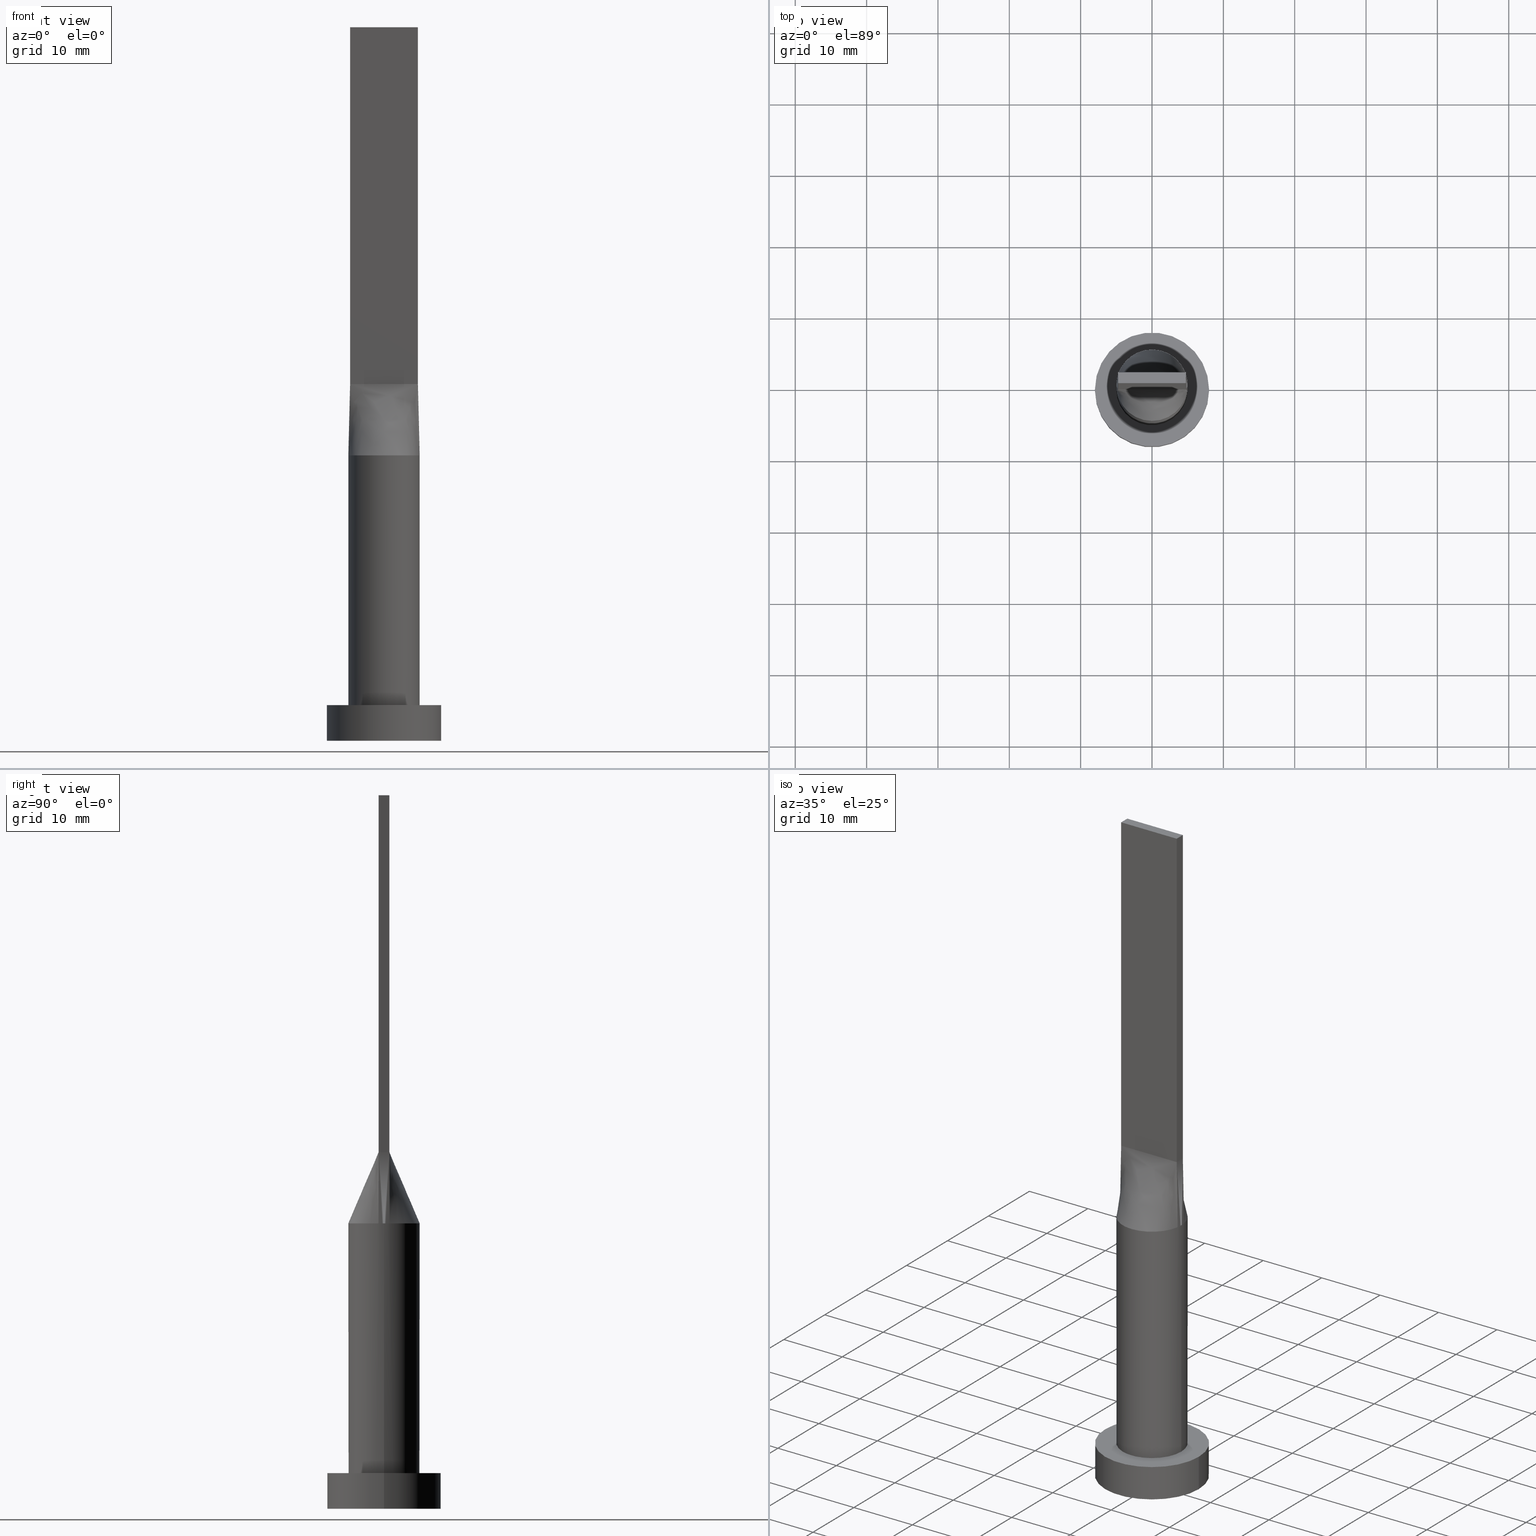
[diagram: canonical four-view strip — front | top / right | iso, engineering-drawing reading convention]
A machine part, canonical four-view strip (front | top / right | iso — engineering-drawing reading convention). The complete STEP part file that produces these views, byte-faithful:
ISO-10303-21;
HEADER;
FILE_DESCRIPTION (( 'STEP AP203' ),
    '1' );
FILE_NAME ('0598.STEP',
    '2023-02-13T09:35:36',
    ( '' ),
    ( '' ),
    'SwSTEP 2.0',
    'SolidWorks 2019',
    '' );
FILE_SCHEMA (( 'CONFIG_CONTROL_DESIGN' ));
ENDSEC;

DATA;
#1 = EDGE_CURVE ( 'NONE', #193, #394, #350, .T. ) ;
#2 = DIRECTION ( 'NONE',  ( 0.000000000000000000, -1.000000000000000000, 0.000000000000000000 ) ) ;
#3 = ORIENTED_EDGE ( 'NONE', *, *, #515, .F. ) ;
#4 = PLANE ( 'NONE',  #310 ) ;
#5 = DIRECTION ( 'NONE',  ( 1.000000000000000000, 0.000000000000000000, 0.000000000000000000 ) ) ;
#6 = CARTESIAN_POINT ( 'NONE',  ( 1.732223102076450250, 4.702695359254404295, 39.99999999999997868 ) ) ;
#7 = VECTOR ( 'NONE', #244, 1000.000000000000000 ) ;
#8 = EDGE_CURVE ( 'NONE', #159, #101, #402, .T. ) ;
#9 = LOCAL_TIME ( 10, 35, 36.00000000000000000, #344 ) ;
#10 = CARTESIAN_POINT ( 'NONE',  ( 4.938814826645345768, -0.7798128673650550624, 40.00000000000000000 ) ) ;
#11 = VECTOR ( 'NONE', #167, 1000.000000000000000 ) ;
#12 = PERSON ( 'NEUR�EN�', 'NEUR�EN�', 'NEUR�EN�', ('NEUR�EN�'), ('NEUR�EN�'), ('NEUR�EN�') ) ;
#13 = DIRECTION ( 'NONE',  ( 0.000000000000000000, 0.000000000000000000, 1.000000000000000000 ) ) ;
#14 = ORIENTED_EDGE ( 'NONE', *, *, #271, .T. ) ;
#15 = ORIENTED_EDGE ( 'NONE', *, *, #79, .T. ) ;
#16 = CARTESIAN_POINT ( 'NONE',  ( 2.353781608410062454, 4.424438117685770777, 40.00000000000000000 ) ) ;
#17 = EDGE_LOOP ( 'NONE', ( #121, #343, #56, #200 ) ) ;
#18 = EDGE_CURVE ( 'NONE', #597, #28, #220, .T. ) ;
#19 = PERSON_AND_ORGANIZATION_ROLE ( 'design_owner' ) ;
#20 = FACE_OUTER_BOUND ( 'NONE', #547, .T. ) ;
#21 = ORIENTED_EDGE ( 'NONE', *, *, #583, .T. ) ;
#22 = AXIS2_PLACEMENT_3D ( 'NONE', #239, #48, #523 ) ;
#23 = AXIS2_PLACEMENT_3D ( 'NONE', #505, #132, #100 ) ;
#24 = APPROVAL_STATUS ( 'not_yet_approved' ) ;
#25 = EDGE_LOOP ( 'NONE', ( #389, #3, #296, #266 ) ) ;
#26 = FACE_OUTER_BOUND ( 'NONE', #228, .T. ) ;
#27 = EDGE_LOOP ( 'NONE', ( #328, #237, #551, #561 ) ) ;
#28 = VERTEX_POINT ( 'NONE', #267 ) ;
#29 = DIRECTION ( 'NONE',  ( -0.000000000000000000, -0.000000000000000000, -1.000000000000000000 ) ) ;
#30 = DIRECTION ( 'NONE',  ( 1.000000000000000000, 0.000000000000000000, 0.000000000000000000 ) ) ;
#31 = CARTESIAN_POINT ( 'NONE',  ( 0.000000000000000000, 0.000000000000000000, 5.000000000000000000 ) ) ;
#32 = CC_DESIGN_PERSON_AND_ORGANIZATION_ASSIGNMENT ( #534, #19, ( #513 ) ) ;
#33 = CARTESIAN_POINT ( 'NONE',  ( -4.750000000000000000, 0.5000000000000000000, 50.00000000000000000 ) ) ;
#34 = AXIS2_PLACEMENT_3D ( 'NONE', #31, #608, #274 ) ;
#35 = CARTESIAN_POINT ( 'NONE',  ( -0.9895833333333416970, 0.7500000000000002220, 50.00000000000000000 ) ) ;
#36 = CARTESIAN_POINT ( 'NONE',  ( -0.3560391241594598188, -5.000000000000001776, 40.00000000000000000 ) ) ;
#37 = CARTESIAN_POINT ( 'NONE',  ( 4.844407413322673328, 0.7649064336825270871, 45.00000000000000000 ) ) ;
#38 = CARTESIAN_POINT ( 'NONE',  ( 4.354166666666667851, -0.7499999999999997780, 50.00000000000000000 ) ) ;
#39 = EDGE_CURVE ( 'NONE', #103, #183, #453, .T. ) ;
#40 = CARTESIAN_POINT ( 'NONE',  ( -4.750000000000000000, -0.7499999999999991118, 50.00000000000000000 ) ) ;
#41 = DIRECTION ( 'NONE',  ( 0.000000000000000000, 0.000000000000000000, 1.000000000000000000 ) ) ;
#42 = VECTOR ( 'NONE', #363, 1000.000000000000000 ) ;
#43 = LINE ( 'NONE', #431, #194 ) ;
#44 = CARTESIAN_POINT ( 'NONE',  ( 4.938833698301754893, -0.7798158709413661738, 40.00000000000000000 ) ) ;
#45 = AXIS2_PLACEMENT_3D ( 'NONE', #233, #326, #231 ) ;
#46 = CARTESIAN_POINT ( 'NONE',  ( -4.750000000000000000, 0.7500000000000002220, 50.00000000000000000 ) ) ;
#47 = CARTESIAN_POINT ( 'NONE',  ( -4.874625637456156291, 1.186344398896586716, 40.00000000000000000 ) ) ;
#48 = DIRECTION ( 'NONE',  ( 0.000000000000000000, 0.000000000000000000, 1.000000000000000000 ) ) ;
#49 = FACE_OUTER_BOUND ( 'NONE', #139, .T. ) ;
#50 = ADVANCED_FACE ( 'NONE', ( #306 ), #571, .T. ) ;
#51 = DIRECTION ( 'NONE',  ( -1.000000000000000000, 0.000000000000000000, 0.000000000000000000 ) ) ;
#52 = LINE ( 'NONE', #204, #7 ) ;
#53 = CLOSED_SHELL ( 'NONE', ( #250, #409, #508, #212, #154, #362, #50, #293, #88, #334, #305, #190, #127, #481, #553 ) ) ;
#54 = ORIENTED_EDGE ( 'NONE', *, *, #591, .F. ) ;
#55 =( NAMED_UNIT ( * ) SI_UNIT ( $, .STERADIAN. ) SOLID_ANGLE_UNIT ( ) );
#56 = ORIENTED_EDGE ( 'NONE', *, *, #163, .T. ) ;
#57 = CARTESIAN_POINT ( 'NONE',  ( 0.000000000000000000, 0.000000000000000000, 0.000000000000000000 ) ) ;
#58 = EDGE_CURVE ( 'NONE', #394, #151, #519, .T. ) ;
#59 = EDGE_LOOP ( 'NONE', ( #454, #78, #14, #264 ) ) ;
#60 = PLANE ( 'NONE',  #470 ) ;
#61 = DATE_AND_TIME ( #340, #545 ) ;
#62 = ORGANIZATION ( 'NEUR�EN�', 'NEUR�EN�', '' ) ;
#63 = CARTESIAN_POINT ( 'NONE',  ( -0.7119876437238006339, 4.961551549233178982, 40.00000000000000711 ) ) ;
#64 = CARTESIAN_POINT ( 'NONE',  ( -2.643217737595827010, -4.256483892511436551, 39.99999999999999289 ) ) ;
#65 = CARTESIAN_POINT ( 'NONE',  ( 3.168723755431093192, 3.881165404529570040, 39.99999999999999289 ) ) ;
#66 = EDGE_CURVE ( 'NONE', #107, #441, #601, .T. ) ;
#67 = ORIENTED_EDGE ( 'NONE', *, *, #564, .T. ) ;
#68 = CARTESIAN_POINT ( 'NONE',  ( -4.332026455536839293, -2.547220758687717801, 40.00000000000000711 ) ) ;
#69 = APPLICATION_CONTEXT ( 'configuration controlled 3d designs of mechanical parts and assemblies' ) ;
#70 = PERSON_AND_ORGANIZATION ( #12, #62 ) ;
#71 = CARTESIAN_POINT ( 'NONE',  ( 4.354166666666665186, 0.7500000000000002220, 50.00000000000000000 ) ) ;
#72 = ORIENTED_EDGE ( 'NONE', *, *, #455, .F. ) ;
#73 = PERSON_AND_ORGANIZATION_ROLE ( 'classification_officer' ) ;
#74 = CARTESIAN_POINT ( 'NONE',  ( 4.750000000000000000, 0.5000000000000006661, 50.00000000000000000 ) ) ;
#75 = ORIENTED_EDGE ( 'NONE', *, *, #591, .T. ) ;
#77 = CARTESIAN_POINT ( 'NONE',  ( -5.000000000000000000, 0.000000000000000000, 5.000000000000000000 ) ) ;
#76 = ADVANCED_BREP_SHAPE_REPRESENTATION ( '0598', ( #137, #430 ), #272 ) ;
#78 = ORIENTED_EDGE ( 'NONE', *, *, #342, .T. ) ;
#79 = EDGE_CURVE ( 'NONE', #213, #259, #142, .T. ) ;
#80 = FACE_OUTER_BOUND ( 'NONE', #128, .T. ) ;
#81 = CARTESIAN_POINT ( 'NONE',  ( 3.958333333333336146, -0.7499999999999997780, 50.00000000000000000 ) ) ;
#82 = CARTESIAN_POINT ( 'NONE',  ( 0.000000000000000000, 0.000000000000000000, 5.000000000000000000 ) ) ;
#83 = CARTESIAN_POINT ( 'NONE',  ( 4.938814826645345768, -0.7798128673650571718, 40.00000000000000000 ) ) ;
#84 = AXIS2_PLACEMENT_3D ( 'NONE', #348, #115, #166 ) ;
#85 = VECTOR ( 'NONE', #279, 1000.000000000000000 ) ;
#86 = CARTESIAN_POINT ( 'NONE',  ( -4.750000000000000000, 0.7500000000000002220, 100.0000000000000000 ) ) ;
#87 = CARTESIAN_POINT ( 'NONE',  ( 4.753727492665065668, -1.629988260829203561, 40.00000000000000000 ) ) ;
#88 = ADVANCED_FACE ( 'NONE', ( #324 ), #520, .T. ) ;
#89 = VERTEX_POINT ( 'NONE', #469 ) ;
#90 = LINE ( 'NONE', #550, #428 ) ;
#91 = CARTESIAN_POINT ( 'NONE',  ( -4.750000000000000000, 0.2500000000000000555, 50.00000000000000000 ) ) ;
#92 = DIRECTION ( 'NONE',  ( -0.000000000000000000, -0.000000000000000000, -1.000000000000000000 ) ) ;
#93 = CARTESIAN_POINT ( 'NONE',  ( -4.938814826645345768, -0.7798128673650532861, 40.00000000000000000 ) ) ;
#94 = VECTOR ( 'NONE', #598, 1000.000000000000000 ) ;
#95 = UNCERTAINTY_MEASURE_WITH_UNIT (LENGTH_MEASURE( 1.000000000000000082E-05 ), #196, 'distance_accuracy_value', 'NONE');
#96 = ORIENTED_EDGE ( 'NONE', *, *, #119, .T. ) ;
#97 = DIRECTION ( 'NONE',  ( -0.01887803397728732291, 0.002980742206940386902, 0.9998173508241633423 ) ) ;
#98 = CARTESIAN_POINT ( 'NONE',  ( 4.750000000000000000, -0.7499999999999997780, 100.0000000000000000 ) ) ;
#99 = APPROVAL ( #353, 'NEUR�EN�' ) ;
#100 = DIRECTION ( 'NONE',  ( 1.000000000000000000, 2.664535259100375697E-15, 0.000000000000000000 ) ) ;
#101 = VERTEX_POINT ( 'NONE', #44 ) ;
#102 = CARTESIAN_POINT ( 'NONE',  ( -0.7119876437238006339, 4.961551549233178982, 40.00000000000000711 ) ) ;
#103 = VERTEX_POINT ( 'NONE', #604 ) ;
#104 = VECTOR ( 'NONE', #567, 1000.000000000000114 ) ;
#105 = DIRECTION ( 'NONE',  ( -0.000000000000000000, -0.000000000000000000, -1.000000000000000000 ) ) ;
#106 = CARTESIAN_POINT ( 'NONE',  ( -2.353781608410062010, 4.424438117685770777, 39.99999999999998579 ) ) ;
#107 = VERTEX_POINT ( 'NONE', #365 ) ;
#108 = EDGE_CURVE ( 'NONE', #101, #103, #209, .T. ) ;
#109 = APPROVAL_DATE_TIME ( #206, #99 ) ;
#110 = CARTESIAN_POINT ( 'NONE',  ( -0.3560391241594593192, 5.000000000000000000, 39.99999999999998579 ) ) ;
#111 = PERSON_AND_ORGANIZATION ( #12, #62 ) ;
#112 = CARTESIAN_POINT ( 'NONE',  ( 0.1979166666666585250, 0.7500000000000001110, 50.00000000000000000 ) ) ;
#113 = CARTESIAN_POINT ( 'NONE',  ( -4.029217956433126524, -3.021257902548482033, 40.00000000000000711 ) ) ;
#114 = APPROVAL_ROLE ( '' ) ;
#115 = DIRECTION ( 'NONE',  ( 0.000000000000000000, -1.000000000000000000, 0.000000000000000000 ) ) ;
#116 = EDGE_LOOP ( 'NONE', ( #587, #124, #174, #536, #337, #565 ) ) ;
#117 = ORIENTED_EDGE ( 'NONE', *, *, #79, .F. ) ;
#118 = PERSON_AND_ORGANIZATION_ROLE ( 'creator' ) ;
#119 = EDGE_CURVE ( 'NONE', #126, #159, #341, .T. ) ;
#120 = CARTESIAN_POINT ( 'NONE',  ( 4.753727492665065668, 1.629988260829201563, 40.00000000000001421 ) ) ;
#121 = ORIENTED_EDGE ( 'NONE', *, *, #66, .F. ) ;
#122 = COORDINATED_UNIVERSAL_TIME_OFFSET ( 1, 0, .AHEAD. ) ;
#123 = DIRECTION ( 'NONE',  ( 0.000000000000000000, 0.000000000000000000, 1.000000000000000000 ) ) ;
#124 = ORIENTED_EDGE ( 'NONE', *, *, #108, .F. ) ;
#125 = CARTESIAN_POINT ( 'NONE',  ( 2.177083333333325044, 0.7500000000000002220, 50.00000000000000000 ) ) ;
#126 = VERTEX_POINT ( 'NONE', #152 ) ;
#127 = ADVANCED_FACE ( 'NONE', ( #157 ), #60, .F. ) ;
#128 = EDGE_LOOP ( 'NONE', ( #15, #574, #309, #602 ) ) ;
#129 = CARTESIAN_POINT ( 'NONE',  ( 0.000000000000000000, 0.000000000000000000, 40.00000000000000000 ) ) ;
#130 = CARTESIAN_POINT ( 'NONE',  ( 0.7916666666666752894, -0.7499999999999995559, 50.00000000000000000 ) ) ;
#131 = CARTESIAN_POINT ( 'NONE',  ( 8.000000000000000000, 9.797174393178825657E-16, 5.000000000000000000 ) ) ;
#132 = DIRECTION ( 'NONE',  ( 0.000000000000000000, 0.000000000000000000, 1.000000000000000000 ) ) ;
#133 = CC_DESIGN_PERSON_AND_ORGANIZATION_ASSIGNMENT ( #595, #73, ( #399 ) ) ;
#134 = LINE ( 'NONE', #313, #42 ) ;
#135 = ORIENTED_EDGE ( 'NONE', *, *, #8, .T. ) ;
#136 = DIRECTION ( 'NONE',  ( 1.000000000000000000, 0.000000000000000000, 0.000000000000000000 ) ) ;
#137 = MANIFOLD_SOLID_BREP ( 'P�idat vysunut�m5', #53 ) ;
#138 = VECTOR ( 'NONE', #29, 1000.000000000000000 ) ;
#139 = EDGE_LOOP ( 'NONE', ( #162, #573, #444, #75 ) ) ;
#140 = CARTESIAN_POINT ( 'NONE',  ( -3.168723755431092748, 3.881165404529570484, 39.99999999999997868 ) ) ;
#141 = B_SPLINE_SURFACE_WITH_KNOTS ( 'NONE', 3, 1, ( 
 ( #356, #448 ),
 ( #158, #71 ),
 ( #120, #354 ),
 ( #255, #405 ),
 ( #301, #490 ),
 ( #345, #125 ),
 ( #65, #543 ),
 ( #311, #540 ),
 ( #16, #538 ),
 ( #208, #392 ),
 ( #530, #304 ),
 ( #401, #593 ),
 ( #358, #112 ),
 ( #295, #485 ),
 ( #63, #181 ),
 ( #611, #548 ),
 ( #411, #35 ),
 ( #458, #229 ),
 ( #323, #184 ),
 ( #140, #226 ),
 ( #460, #186 ),
 ( #510, #507 ),
 ( #370, #373 ),
 ( #413, #603 ),
 ( #558, #265 ),
 ( #179, #606 ) ),
 .UNSPECIFIED., .F., .F., .F.,
 ( 4, 2, 2, 2, 2, 2, 2, 2, 2, 2, 2, 2, 4 ),
 ( 2, 2 ),
 ( 0.000000000000000000, 0.1250000000000001388, 0.2500000000000002220, 0.3125000000000002776, 0.3750000000000002776, 0.4375000000000002776, 0.5000000000000002220, 0.5625000000000002220, 0.6250000000000001110, 0.6875000000000001110, 0.7500000000000001110, 0.8750000000000001110, 1.000000000000000000 ),
 ( 0.000000000000000000, 1.000000000000000000 ),
 .UNSPECIFIED. ) ;
#142 = LINE ( 'NONE', #269, #620 ) ;
#143 = VERTEX_POINT ( 'NONE', #98 ) ;
#144 = DIRECTION ( 'NONE',  ( -0.01887803397728732291, -0.002980742206940007865, 0.9998173508241633423 ) ) ;
#145 = CARTESIAN_POINT ( 'NONE',  ( 2.770833333333341031, -0.7499999999999997780, 50.00000000000000000 ) ) ;
#146 = ORIENTED_EDGE ( 'NONE', *, *, #18, .F. ) ;
#147 = DIRECTION ( 'NONE',  ( 1.000000000000000000, 0.000000000000000000, -0.000000000000000000 ) ) ;
#148 = EDGE_CURVE ( 'NONE', #183, #491, #376, .T. ) ;
#149 = CARTESIAN_POINT ( 'NONE',  ( 0.000000000000000000, 0.000000000000000000, 5.000000000000000000 ) ) ;
#150 = CARTESIAN_POINT ( 'NONE',  ( -4.029217956433124748, 3.021257902548482033, 40.00000000000001421 ) ) ;
#151 = VERTEX_POINT ( 'NONE', #335 ) ;
#152 = CARTESIAN_POINT ( 'NONE',  ( -4.750000000000000000, -0.7499999999999991118, 50.00000000000000000 ) ) ;
#153 = DIRECTION ( 'NONE',  ( 0.000000000000000000, 0.000000000000000000, 1.000000000000000000 ) ) ;
#154 = ADVANCED_FACE ( 'NONE', ( #192 ), #524, .F. ) ;
#155 = DIRECTION ( 'NONE',  ( 0.000000000000000000, 0.000000000000000000, 1.000000000000000000 ) ) ;
#156 = CARTESIAN_POINT ( 'NONE',  ( 0.000000000000000000, 0.000000000000000000, 40.00000000000000000 ) ) ;
#157 = FACE_OUTER_BOUND ( 'NONE', #25, .T. ) ;
#158 = CARTESIAN_POINT ( 'NONE',  ( 4.874625637456157179, 1.186344398896585606, 40.00000000000000000 ) ) ;
#159 = VERTEX_POINT ( 'NONE', #478 ) ;
#160 = CARTESIAN_POINT ( 'NONE',  ( -4.753727492665065668, -1.629988260829201119, 40.00000000000000711 ) ) ;
#161 = PLANE ( 'NONE',  #84 ) ;
#162 = ORIENTED_EDGE ( 'NONE', *, *, #533, .T. ) ;
#163 = EDGE_CURVE ( 'NONE', #446, #216, #382, .T. ) ;
#164 = CIRCLE ( 'NONE', #45, 5.000000000000000000 ) ;
#165 = AXIS2_PLACEMENT_3D ( 'NONE', #474, #153, #619 ) ;
#166 = DIRECTION ( 'NONE',  ( 0.000000000000000000, -0.000000000000000000, -1.000000000000000000 ) ) ;
#167 = DIRECTION ( 'NONE',  ( -0.000000000000000000, -0.000000000000000000, -1.000000000000000000 ) ) ;
#168 = APPROVAL_STATUS ( 'not_yet_approved' ) ;
#169 = CARTESIAN_POINT ( 'NONE',  ( 4.750000000000000000, -0.7499999999999997780, 50.00000000000000000 ) ) ;
#170 = EDGE_LOOP ( 'NONE', ( #557, #67, #364, #393, #223 ) ) ;
#171 = ORIENTED_EDGE ( 'NONE', *, *, #471, .F. ) ;
#172 = CARTESIAN_POINT ( 'NONE',  ( 4.750000000000000000, -0.4999999999999992784, 50.00000000000000000 ) ) ;
#173 = EDGE_CURVE ( 'NONE', #143, #597, #333, .T. ) ;
#174 = ORIENTED_EDGE ( 'NONE', *, *, #8, .F. ) ;
#175 = PLANE ( 'NONE',  #235 ) ;
#176 = LOCAL_TIME ( 10, 35, 36.00000000000000000, #299 ) ;
#177 = CARTESIAN_POINT ( 'NONE',  ( 1.979166666666674734, -0.7499999999999997780, 50.00000000000000000 ) ) ;
#178 = AXIS2_PLACEMENT_3D ( 'NONE', #312, #457, #30 ) ;
#179 = CARTESIAN_POINT ( 'NONE',  ( -4.938814826645345768, 0.7798128673650545073, 40.00000000000000000 ) ) ;
#180 = CARTESIAN_POINT ( 'NONE',  ( 3.404830936252118967, -3.673931880027069496, 40.00000000000002842 ) ) ;
#181 = CARTESIAN_POINT ( 'NONE',  ( -0.3958333333333418635, 0.7500000000000002220, 50.00000000000000000 ) ) ;
#182 = CARTESIAN_POINT ( 'NONE',  ( 2.353781608410061121, -4.424438117685769889, 39.99999999999999289 ) ) ;
#183 = VERTEX_POINT ( 'NONE', #286 ) ;
#184 = CARTESIAN_POINT ( 'NONE',  ( -1.583333333333340587, 0.7500000000000002220, 50.00000000000000000 ) ) ;
#185 = CARTESIAN_POINT ( 'NONE',  ( 4.029217956433124748, -3.021257902548483365, 40.00000000000002132 ) ) ;
#186 = CARTESIAN_POINT ( 'NONE',  ( -2.177083333333339699, 0.7500000000000002220, 50.00000000000000000 ) ) ;
#187 = CARTESIAN_POINT ( 'NONE',  ( -4.999625637456156291, 0.2615280553041492984, 40.00000000000000000 ) ) ;
#188 = PLANE ( 'NONE',  #165 ) ;
#189 = CARTESIAN_POINT ( 'NONE',  ( 2.353781608410062454, 4.424438117685770777, 40.00000000000000000 ) ) ;
#190 = ADVANCED_FACE ( 'NONE', ( #49 ), #241, .F. ) ;
#191 = CYLINDRICAL_SURFACE ( 'NONE', #298, 8.000000000000000000 ) ;
#192 = FACE_OUTER_BOUND ( 'NONE', #349, .T. ) ;
#193 = VERTEX_POINT ( 'NONE', #288 ) ;
#194 = VECTOR ( 'NONE', #388, 1000.000000000000114 ) ;
#195 = VECTOR ( 'NONE', #522, 1000.000000000000000 ) ;
#196 =( LENGTH_UNIT ( ) NAMED_UNIT ( * ) SI_UNIT ( .MILLI., .METRE. ) );
#197 = CARTESIAN_POINT ( 'NONE',  ( -4.750000000000000000, 0.7500000000000002220, 100.0000000000000000 ) ) ;
#198 = EDGE_CURVE ( 'NONE', #597, #259, #52, .T. ) ;
#199 = CARTESIAN_POINT ( 'NONE',  ( -4.750000000000000000, 0.7500000000000002220, 50.00000000000000000 ) ) ;
#200 = ORIENTED_EDGE ( 'NONE', *, *, #605, .F. ) ;
#201 = CARTESIAN_POINT ( 'NONE',  ( 0.000000000000000000, 0.000000000000000000, 5.000000000000000000 ) ) ;
#202 = APPLICATION_PROTOCOL_DEFINITION ( 'international standard', 'config_control_design', 1994, #418 ) ;
#203 = ORIENTED_EDGE ( 'NONE', *, *, #433, .T. ) ;
#204 = CARTESIAN_POINT ( 'NONE',  ( 4.750000000000000000, 0.7500000000000002220, 100.0000000000000000 ) ) ;
#205 = AXIS2_PLACEMENT_3D ( 'NONE', #156, #512, #282 ) ;
#206 = DATE_AND_TIME ( #214, #243 ) ;
#207 = AXIS2_PLACEMENT_3D ( 'NONE', #57, #378, #147 ) ;
#208 = CARTESIAN_POINT ( 'NONE',  ( 1.732223102076450250, 4.702695359254404295, 39.99999999999997868 ) ) ;
#209 = CIRCLE ( 'NONE', #23, 5.000000000000000000 ) ;
#210 = ORIENTED_EDGE ( 'NONE', *, *, #368, .T. ) ;
#211 = CARTESIAN_POINT ( 'NONE',  ( 4.750000000000000000, 0.7500000000000002220, 50.00000000000000000 ) ) ;
#212 = ADVANCED_FACE ( 'NONE', ( #434, #432 ), #4, .T. ) ;
#213 = VERTEX_POINT ( 'NONE', #169 ) ;
#214 = CALENDAR_DATE ( 2023, 13, 2 ) ;
#215 = CARTESIAN_POINT ( 'NONE',  ( 4.938814826645345768, 0.7798128673650538412, 40.00000000000000000 ) ) ;
#216 = VERTEX_POINT ( 'NONE', #494 ) ;
#217 = DATE_TIME_ROLE ( 'creation_date' ) ;
#218 = APPROVAL_PERSON_ORGANIZATION ( #111, #325, #257 ) ;
#219 = CARTESIAN_POINT ( 'NONE',  ( 4.999625637456156291, -0.2615280553041495204, 40.00000000000000000 ) ) ;
#220 = LINE ( 'NONE', #302, #438 ) ;
#221 = PRODUCT_RELATED_PRODUCT_CATEGORY ( 'detail', '', ( #513 ) ) ;
#222 = FACE_OUTER_BOUND ( 'NONE', #27, .T. ) ;
#223 = ORIENTED_EDGE ( 'NONE', *, *, #498, .F. ) ;
#224 = DIRECTION ( 'NONE',  ( 0.000000000000000000, 0.000000000000000000, 1.000000000000000000 ) ) ;
#225 = CARTESIAN_POINT ( 'NONE',  ( -4.938814826645345768, -0.7798128673650532861, 40.00000000000000000 ) ) ;
#226 = CARTESIAN_POINT ( 'NONE',  ( -1.979166666666673402, 0.7500000000000002220, 50.00000000000000000 ) ) ;
#227 = CARTESIAN_POINT ( 'NONE',  ( -0.1979166666666593299, -0.7499999999999994449, 50.00000000000000000 ) ) ;
#228 = EDGE_LOOP ( 'NONE', ( #210, #54, #146, #292 ) ) ;
#229 = CARTESIAN_POINT ( 'NONE',  ( -1.385416666666674068, 0.7500000000000002220, 50.00000000000000000 ) ) ;
#230 = CARTESIAN_POINT ( 'NONE',  ( 0.3958333333333413639, -0.7499999999999994449, 50.00000000000000000 ) ) ;
#231 = DIRECTION ( 'NONE',  ( 1.000000000000000000, 0.000000000000000000, 0.000000000000000000 ) ) ;
#232 = CARTESIAN_POINT ( 'NONE',  ( 1.732223102076449583, -4.702695359254404295, 40.00000000000000711 ) ) ;
#233 = CARTESIAN_POINT ( 'NONE',  ( 0.000000000000000000, 0.000000000000000000, 40.00000000000000000 ) ) ;
#234 = DIRECTION ( 'NONE',  ( -0.000000000000000000, 1.000000000000000000, -0.000000000000000000 ) ) ;
#235 = AXIS2_PLACEMENT_3D ( 'NONE', #268, #316, #377 ) ;
#236 = EDGE_CURVE ( 'NONE', #151, #394, #568, .T. ) ;
#237 = ORIENTED_EDGE ( 'NONE', *, *, #498, .T. ) ;
#238 = CARTESIAN_POINT ( 'NONE',  ( -1.400150253878313711, -4.812847332616943419, 40.00000000000000711 ) ) ;
#239 = CARTESIAN_POINT ( 'NONE',  ( 0.000000000000000000, 0.000000000000000000, 0.000000000000000000 ) ) ;
#240 = CARTESIAN_POINT ( 'NONE',  ( 4.753727492665065668, 1.629988260829201563, 40.00000000000001421 ) ) ;
#241 = PLANE ( 'NONE',  #280 ) ;
#242 = APPROVAL ( #168, 'NEUR�EN�' ) ;
#243 = LOCAL_TIME ( 10, 35, 36.00000000000000000, #585 ) ;
#244 = DIRECTION ( 'NONE',  ( -0.000000000000000000, -0.000000000000000000, -1.000000000000000000 ) ) ;
#245 = DIRECTION ( 'NONE',  ( -0.000000000000000000, -0.000000000000000000, -1.000000000000000000 ) ) ;
#246 = DIRECTION ( 'NONE',  ( -1.000000000000000000, 6.847592668329501559E-17, 0.000000000000000000 ) ) ;
#247 = PERSON_AND_ORGANIZATION ( #12, #62 ) ;
#248 = LINE ( 'NONE', #596, #516 ) ;
#249 = VECTOR ( 'NONE', #287, 1000.000000000000000 ) ;
#250 = ADVANCED_FACE ( 'NONE', ( #20 ), #496, .T. ) ;
#251 = DIRECTION ( 'NONE',  ( 1.000000000000000000, -6.847592668329501559E-17, 0.000000000000000000 ) ) ;
#252 = AXIS2_PLACEMENT_3D ( 'NONE', #612, #41, #321 ) ;
#253 = CARTESIAN_POINT ( 'NONE',  ( -1.583333333333326376, -0.7499999999999995559, 50.00000000000001421 ) ) ;
#254 = APPROVAL_DATE_TIME ( #439, #242 ) ;
#255 = CARTESIAN_POINT ( 'NONE',  ( 4.332026455536839293, 2.547220758687718689, 40.00000000000000711 ) ) ;
#256 = DIRECTION ( 'NONE',  ( -1.000000000000000000, 0.000000000000000000, 0.000000000000000000 ) ) ;
#257 = APPROVAL_ROLE ( '' ) ;
#258 = CARTESIAN_POINT ( 'NONE',  ( 4.999625637456156291, 0.2615280553041483547, 40.00000000000000000 ) ) ;
#259 = VERTEX_POINT ( 'NONE', #211 ) ;
#260 = CC_DESIGN_DATE_AND_TIME_ASSIGNMENT ( #61, #527, ( #399 ) ) ;
#261 = PERSON_AND_ORGANIZATION ( #12, #62 ) ;
#262 = AXIS2_PLACEMENT_3D ( 'NONE', #263, #581, #499 ) ;
#263 = CARTESIAN_POINT ( 'NONE',  ( 0.000000000000000000, 0.000000000000000000, 40.00000000000000000 ) ) ;
#264 = ORIENTED_EDGE ( 'NONE', *, *, #173, .T. ) ;
#265 = CARTESIAN_POINT ( 'NONE',  ( -4.354166666666667851, 0.7500000000000002220, 50.00000000000000000 ) ) ;
#266 = ORIENTED_EDGE ( 'NONE', *, *, #572, .T. ) ;
#267 = CARTESIAN_POINT ( 'NONE',  ( -4.750000000000000000, 0.7500000000000002220, 100.0000000000000000 ) ) ;
#268 = CARTESIAN_POINT ( 'NONE',  ( 4.750000000000000000, -0.7499999999999997780, 100.0000000000000000 ) ) ;
#269 = CARTESIAN_POINT ( 'NONE',  ( 4.750000000000000000, 0.7500000000000002220, 50.00000000000000000 ) ) ;
#270 = LINE ( 'NONE', #86, #94 ) ;
#271 = EDGE_CURVE ( 'NONE', #89, #143, #248, .T. ) ;
#272 =( GEOMETRIC_REPRESENTATION_CONTEXT ( 3 ) GLOBAL_UNCERTAINTY_ASSIGNED_CONTEXT ( ( #95 ) ) GLOBAL_UNIT_ASSIGNED_CONTEXT ( ( #196, #472, #55 ) ) REPRESENTATION_CONTEXT ( 'NONE', 'WORKASPACE' ) );
#273 = CARTESIAN_POINT ( 'NONE',  ( -1.385416666666659413, -0.7499999999999995559, 50.00000000000001421 ) ) ;
#274 = DIRECTION ( 'NONE',  ( -1.000000000000000000, 0.000000000000000000, 0.000000000000000000 ) ) ;
#275 = CARTESIAN_POINT ( 'NONE',  ( 4.750000000000000000, -0.7499999999999997780, 50.00000000000000000 ) ) ;
#276 = CARTESIAN_POINT ( 'NONE',  ( -8.000000000000000000, 0.000000000000000000, 5.000000000000000000 ) ) ;
#277 = CARTESIAN_POINT ( 'NONE',  ( -4.999625637456156291, -0.2615280553041481326, 40.00000000000000000 ) ) ;
#278 = CC_DESIGN_PERSON_AND_ORGANIZATION_ASSIGNMENT ( #400, #118, ( #590 ) ) ;
#279 = DIRECTION ( 'NONE',  ( -0.000000000000000000, -0.000000000000000000, -1.000000000000000000 ) ) ;
#280 = AXIS2_PLACEMENT_3D ( 'NONE', #197, #291, #484 ) ;
#281 = CARTESIAN_POINT ( 'NONE',  ( -4.750000000000000000, -0.7499999999999991118, 50.00000000000000000 ) ) ;
#282 = DIRECTION ( 'NONE',  ( 1.000000000000000000, 0.000000000000000000, 0.000000000000000000 ) ) ;
#283 = PRODUCT_DEFINITION_SHAPE ( 'NONE', 'NONE',  #425 ) ;
#284 = CARTESIAN_POINT ( 'NONE',  ( 3.404830936252119411, 3.673931880027066388, 40.00000000000000711 ) ) ;
#285 = LINE ( 'NONE', #427, #450 ) ;
#286 = CARTESIAN_POINT ( 'NONE',  ( 4.938814826645345768, 0.7798128673650538412, 40.00000000000000000 ) ) ;
#287 = DIRECTION ( 'NONE',  ( -0.000000000000000000, -0.000000000000000000, -1.000000000000000000 ) ) ;
#288 = CARTESIAN_POINT ( 'NONE',  ( -4.999812818728077701, -1.193032336741890821E-15, 40.00000000000000000 ) ) ;
#289 = VECTOR ( 'NONE', #105, 1000.000000000000000 ) ;
#290 = CARTESIAN_POINT ( 'NONE',  ( 0.3560391241594590972, 5.000000000000001776, 40.00000000000000000 ) ) ;
#291 = DIRECTION ( 'NONE',  ( 1.000000000000000000, 0.000000000000000000, -0.000000000000000000 ) ) ;
#292 = ORIENTED_EDGE ( 'NONE', *, *, #198, .T. ) ;
#293 = ADVANCED_FACE ( 'NONE', ( #535 ), #476, .T. ) ;
#294 = COORDINATED_UNIVERSAL_TIME_OFFSET ( 1, 0, .AHEAD. ) ;
#295 = CARTESIAN_POINT ( 'NONE',  ( -0.3560391241594593192, 5.000000000000000000, 39.99999999999998579 ) ) ;
#296 = ORIENTED_EDGE ( 'NONE', *, *, #271, .F. ) ;
#297 = VECTOR ( 'NONE', #144, 1000.000000000000114 ) ;
#298 = AXIS2_PLACEMENT_3D ( 'NONE', #149, #92, #51 ) ;
#299 = COORDINATED_UNIVERSAL_TIME_OFFSET ( 1, 0, .AHEAD. ) ;
#300 = ORIENTED_EDGE ( 'NONE', *, *, #416, .T. ) ;
#301 = CARTESIAN_POINT ( 'NONE',  ( 4.029217956433126524, 3.021257902548482477, 40.00000000000000711 ) ) ;
#302 = CARTESIAN_POINT ( 'NONE',  ( 4.750000000000000000, 0.7500000000000002220, 100.0000000000000000 ) ) ;
#303 = SECURITY_CLASSIFICATION_LEVEL ( 'unclassified' ) ;
#304 = CARTESIAN_POINT ( 'NONE',  ( 0.7916666666666568597, 0.7500000000000002220, 50.00000000000000000 ) ) ;
#305 = ADVANCED_FACE ( 'NONE', ( #26 ), #161, .F. ) ;
#306 = FACE_OUTER_BOUND ( 'NONE', #495, .T. ) ;
#307 = CARTESIAN_POINT ( 'NONE',  ( 4.979355367185886116, 0.5230561106082972644, 40.00000000000000000 ) ) ;
#308 = ORIENTED_EDGE ( 'NONE', *, *, #1, .F. ) ;
#309 = ORIENTED_EDGE ( 'NONE', *, *, #173, .F. ) ;
#310 = AXIS2_PLACEMENT_3D ( 'NONE', #201, #13, #397 ) ;
#311 = CARTESIAN_POINT ( 'NONE',  ( 2.643217737595826566, 4.256483892511437439, 39.99999999999998579 ) ) ;
#312 = CARTESIAN_POINT ( 'NONE',  ( 0.000000000000000000, 0.000000000000000000, 40.00000000000000000 ) ) ;
#313 = CARTESIAN_POINT ( 'NONE',  ( -4.750000000000000000, 0.7500000000000002220, 50.00000000000000000 ) ) ;
#314 = CARTESIAN_POINT ( 'NONE',  ( -0.7119876437238014111, -4.961551549233179870, 39.99999999999999289 ) ) ;
#315 = CC_DESIGN_PERSON_AND_ORGANIZATION_ASSIGNMENT ( #247, #529, ( #590 ) ) ;
#316 = DIRECTION ( 'NONE',  ( -1.000000000000000000, 0.000000000000000000, 0.000000000000000000 ) ) ;
#317 = CARTESIAN_POINT ( 'NONE',  ( -0.3958333333333254322, -0.7499999999999995559, 50.00000000000000000 ) ) ;
#318 = AXIS2_PLACEMENT_3D ( 'NONE', #129, #504, #420 ) ;
#319 = DIRECTION ( 'NONE',  ( 1.000000000000000000, 0.000000000000000000, 0.000000000000000000 ) ) ;
#320 = APPROVAL_PERSON_ORGANIZATION ( #488, #242, #580 ) ;
#321 = DIRECTION ( 'NONE',  ( 1.000000000000000000, 0.000000000000000000, 0.000000000000000000 ) ) ;
#322 = ORIENTED_EDGE ( 'NONE', *, *, #236, .F. ) ;
#323 = CARTESIAN_POINT ( 'NONE',  ( -2.643217737595827455, 4.256483892511438327, 40.00000000000000000 ) ) ;
#324 = FACE_OUTER_BOUND ( 'NONE', #170, .T. ) ;
#325 = APPROVAL ( #24, 'NEUR�EN�' ) ;
#326 = DIRECTION ( 'NONE',  ( 0.000000000000000000, 0.000000000000000000, 1.000000000000000000 ) ) ;
#327 = CARTESIAN_POINT ( 'NONE',  ( -4.938814826645345768, 0.7798128673650545073, 40.00000000000000000 ) ) ;
#328 = ORIENTED_EDGE ( 'NONE', *, *, #148, .T. ) ;
#329 = CARTESIAN_POINT ( 'NONE',  ( 4.874625637456157179, 1.186344398896585606, 40.00000000000000000 ) ) ;
#330 = CIRCLE ( 'NONE', #205, 5.000000000000000000 ) ;
#331 = AXIS2_PLACEMENT_3D ( 'NONE', #514, #555, #136 ) ;
#332 = FACE_OUTER_BOUND ( 'NONE', #59, .T. ) ;
#333 = LINE ( 'NONE', #526, #195 ) ;
#334 = ADVANCED_FACE ( 'NONE', ( #222 ), #141, .T. ) ;
#335 = CARTESIAN_POINT ( 'NONE',  ( 5.000000000000000000, 6.123233995736766282E-16, 5.000000000000000000 ) ) ;
#336 = LINE ( 'NONE', #46, #467 ) ;
#337 = ORIENTED_EDGE ( 'NONE', *, *, #1, .T. ) ;
#338 = CARTESIAN_POINT ( 'NONE',  ( -4.938831943662458812, 0.7798155886440081286, 40.00000000000000000 ) ) ;
#339 = LOCAL_TIME ( 10, 35, 36.00000000000000000, #122 ) ;
#340 = CALENDAR_DATE ( 2023, 13, 2 ) ;
#341 = LINE ( 'NONE', #429, #104 ) ;
#342 = EDGE_CURVE ( 'NONE', #28, #89, #270, .T. ) ;
#343 = ORIENTED_EDGE ( 'NONE', *, *, #471, .T. ) ;
#344 = COORDINATED_UNIVERSAL_TIME_OFFSET ( 1, 0, .AHEAD. ) ;
#345 = CARTESIAN_POINT ( 'NONE',  ( 3.404830936252119411, 3.673931880027066388, 40.00000000000000711 ) ) ;
#346 = CARTESIAN_POINT ( 'NONE',  ( -3.958333333333332149, -0.7499999999999993339, 50.00000000000000711 ) ) ;
#347 = PERSON_AND_ORGANIZATION_ROLE ( 'creator' ) ;
#348 = CARTESIAN_POINT ( 'NONE',  ( 4.750000000000000000, 0.7500000000000002220, 100.0000000000000000 ) ) ;
#349 = EDGE_LOOP ( 'NONE', ( #437, #480 ) ) ;
#350 = LINE ( 'NONE', #500, #11 ) ;
#351 = VECTOR ( 'NONE', #502, 1000.000000000000000 ) ;
#352 = CC_DESIGN_PERSON_AND_ORGANIZATION_ASSIGNMENT ( #261, #347, ( #425 ) ) ;
#353 = APPROVAL_STATUS ( 'not_yet_approved' ) ;
#354 = CARTESIAN_POINT ( 'NONE',  ( 3.958333333333330373, 0.7500000000000002220, 50.00000000000000000 ) ) ;
#355 = CARTESIAN_POINT ( 'NONE',  ( 0.000000000000000000, 0.000000000000000000, 40.00000000000000000 ) ) ;
#356 = CARTESIAN_POINT ( 'NONE',  ( 4.938814826645345768, 0.7798128673650542853, 40.00000000000000000 ) ) ;
#357 = ORIENTED_EDGE ( 'NONE', *, *, #541, .F. ) ;
#358 = CARTESIAN_POINT ( 'NONE',  ( 0.3560391241594590972, 5.000000000000001776, 40.00000000000000000 ) ) ;
#359 = DIRECTION ( 'NONE',  ( 0.000000000000000000, 0.000000000000000000, 1.000000000000000000 ) ) ;
#360 = CYLINDRICAL_SURFACE ( 'NONE', #34, 8.000000000000000000 ) ;
#361 = CARTESIAN_POINT ( 'NONE',  ( -2.353781608410061121, -4.424438117685769889, 39.99999999999998579 ) ) ;
#362 = ADVANCED_FACE ( 'NONE', ( #366 ), #554, .T. ) ;
#363 = DIRECTION ( 'NONE',  ( -1.000000000000000000, -0.000000000000000000, -0.000000000000000000 ) ) ;
#364 = ORIENTED_EDGE ( 'NONE', *, *, #119, .F. ) ;
#365 = CARTESIAN_POINT ( 'NONE',  ( 8.000000000000000000, 9.797174393178825657E-16, 5.000000000000000000 ) ) ;
#366 = FACE_OUTER_BOUND ( 'NONE', #116, .T. ) ;
#367 = CARTESIAN_POINT ( 'NONE',  ( 3.166666666666673180, -0.7499999999999997780, 50.00000000000000000 ) ) ;
#368 = EDGE_CURVE ( 'NONE', #259, #582, #134, .T. ) ;
#369 = AXIS2_PLACEMENT_3D ( 'NONE', #82, #224, #319 ) ;
#370 = CARTESIAN_POINT ( 'NONE',  ( -4.332026455536841070, 2.547220758687717801, 40.00000000000000711 ) ) ;
#371 = CC_DESIGN_SECURITY_CLASSIFICATION ( #399, ( #590 ) ) ;
#372 = CARTESIAN_POINT ( 'NONE',  ( 4.332026455536841070, -2.547220758687719577, 40.00000000000001421 ) ) ;
#373 = CARTESIAN_POINT ( 'NONE',  ( -3.166666666666671848, 0.7500000000000002220, 50.00000000000000000 ) ) ;
#374 = CARTESIAN_POINT ( 'NONE',  ( -4.750000000000000000, -0.4999999999999994449, 50.00000000000000000 ) ) ;
#375 = EDGE_LOOP ( 'NONE', ( #387, #406, #404, #117, #357 ) ) ;
#376 = B_SPLINE_CURVE_WITH_KNOTS ( 'NONE', 3,
 ( #575, #329, #240, #390, #616, #284, #621, #518, #189, #6, #383, #579, #290, #110, #102, #473, #386, #106, #577, #424, #380, #150, #528, #475, #47, #338 ),
 .UNSPECIFIED., .F., .F.,
 ( 4, 2, 2, 2, 2, 2, 2, 2, 2, 2, 2, 2, 4 ),
 ( 0.000000000000000000, 0.1250000000000001388, 0.2500000000000002220, 0.3125000000000002776, 0.3750000000000002776, 0.4375000000000002776, 0.5000000000000002220, 0.5625000000000002220, 0.6250000000000001110, 0.6875000000000001110, 0.7500000000000001110, 0.8750000000000001110, 1.000000000000000000 ),
 .UNSPECIFIED. ) ;
#377 = DIRECTION ( 'NONE',  ( 0.000000000000000000, 0.000000000000000000, 1.000000000000000000 ) ) ;
#378 = DIRECTION ( 'NONE',  ( 0.000000000000000000, 0.000000000000000000, 1.000000000000000000 ) ) ;
#379 = LINE ( 'NONE', #521, #85 ) ;
#380 = CARTESIAN_POINT ( 'NONE',  ( -3.404830936252120299, 3.673931880027067720, 40.00000000000000711 ) ) ;
#381 = CC_DESIGN_APPROVAL ( #99, ( #425 ) ) ;
#382 = CIRCLE ( 'NONE', #546, 8.000000000000000000 ) ;
#383 = CARTESIAN_POINT ( 'NONE',  ( 1.400150253878312823, 4.812847332616943419, 40.00000000000000711 ) ) ;
#384 = DESIGN_CONTEXT ( 'detailed design', #69, 'design' ) ;
#385 = CARTESIAN_POINT ( 'NONE',  ( 0.000000000000000000, 0.000000000000000000, 0.000000000000000000 ) ) ;
#386 = CARTESIAN_POINT ( 'NONE',  ( -1.732223102076449806, 4.702695359254402518, 39.99999999999999289 ) ) ;
#387 = ORIENTED_EDGE ( 'NONE', *, *, #108, .T. ) ;
#388 = DIRECTION ( 'NONE',  ( 0.01887803397728732291, -0.002980742206940072483, 0.9998173508241633423 ) ) ;
#389 = ORIENTED_EDGE ( 'NONE', *, *, #455, .T. ) ;
#390 = CARTESIAN_POINT ( 'NONE',  ( 4.332026455536839293, 2.547220758687718689, 40.00000000000000711 ) ) ;
#391 = CALENDAR_DATE ( 2023, 13, 2 ) ;
#392 = CARTESIAN_POINT ( 'NONE',  ( 0.9895833333333237114, 0.7500000000000002220, 50.00000000000000000 ) ) ;
#393 = ORIENTED_EDGE ( 'NONE', *, *, #533, .F. ) ;
#394 = VERTEX_POINT ( 'NONE', #77 ) ;
#395 = CARTESIAN_POINT ( 'NONE',  ( 4.750000000000000000, 0.2500000000000009992, 50.00000000000000000 ) ) ;
#396 = ORIENTED_EDGE ( 'NONE', *, *, #416, .F. ) ;
#397 = DIRECTION ( 'NONE',  ( 1.000000000000000000, 0.000000000000000000, -0.000000000000000000 ) ) ;
#398 = CARTESIAN_POINT ( 'NONE',  ( -3.166666666666662966, -0.7499999999999993339, 50.00000000000000711 ) ) ;
#399 = SECURITY_CLASSIFICATION ( '', '', #303 ) ;
#400 = PERSON_AND_ORGANIZATION ( #12, #62 ) ;
#401 = CARTESIAN_POINT ( 'NONE',  ( 0.7119876437238013001, 4.961551549233180758, 40.00000000000001421 ) ) ;
#402 = CIRCLE ( 'NONE', #559, 5.000000000000000000 ) ;
#403 = CARTESIAN_POINT ( 'NONE',  ( -3.168723755431094524, -3.881165404529569152, 39.99999999999999289 ) ) ;
#404 = ORIENTED_EDGE ( 'NONE', *, *, #445, .T. ) ;
#405 = CARTESIAN_POINT ( 'NONE',  ( 3.166666666666660745, 0.7500000000000002220, 50.00000000000000000 ) ) ;
#406 = ORIENTED_EDGE ( 'NONE', *, *, #39, .T. ) ;
#407 = EDGE_LOOP ( 'NONE', ( #300, #614 ) ) ;
#408 = CARTESIAN_POINT ( 'NONE',  ( 8.000000000000000000, 9.797174393178825657E-16, 0.000000000000000000 ) ) ;
#409 = ADVANCED_FACE ( 'NONE', ( #417 ), #360, .T. ) ;
#410 = CARTESIAN_POINT ( 'NONE',  ( -4.750000000000000000, -0.7499999999999991118, 50.00000000000000000 ) ) ;
#411 = CARTESIAN_POINT ( 'NONE',  ( -1.732223102076449806, 4.702695359254402518, 39.99999999999999289 ) ) ;
#412 = CARTESIAN_POINT ( 'NONE',  ( -4.979355367185885228, -0.5230561106082968204, 40.00000000000000000 ) ) ;
#413 = CARTESIAN_POINT ( 'NONE',  ( -4.753727492665067444, 1.629988260829202007, 40.00000000000001421 ) ) ;
#414 = EDGE_LOOP ( 'NONE', ( #584, #322 ) ) ;
#415 = CARTESIAN_POINT ( 'NONE',  ( 1.385416666666674956, -0.7499999999999997780, 50.00000000000000000 ) ) ;
#416 = EDGE_CURVE ( 'NONE', #441, #107, #486, .T. ) ;
#417 = FACE_OUTER_BOUND ( 'NONE', #17, .T. ) ;
#418 = APPLICATION_CONTEXT ( 'configuration controlled 3d designs of mechanical parts and assemblies' ) ;
#419 = CARTESIAN_POINT ( 'NONE',  ( 0.7119876437238003009, -4.961551549233181646, 40.00000000000000711 ) ) ;
#420 = DIRECTION ( 'NONE',  ( -1.000000000000000000, 0.000000000000000000, 0.000000000000000000 ) ) ;
#421 = CARTESIAN_POINT ( 'NONE',  ( 2.177083333333341475, -0.7499999999999997780, 50.00000000000000000 ) ) ;
#422 = CARTESIAN_POINT ( 'NONE',  ( -4.750000000000000000, -0.7499999999999991118, 100.0000000000000000 ) ) ;
#423 = CARTESIAN_POINT ( 'NONE',  ( -4.750000000000000000, 0.7500000000000002220, 100.0000000000000000 ) ) ;
#424 = CARTESIAN_POINT ( 'NONE',  ( -3.168723755431092748, 3.881165404529570484, 39.99999999999997868 ) ) ;
#425 = PRODUCT_DEFINITION ( 'NEZN�M�', '', #590, #384 ) ;
#426 = ORIENTED_EDGE ( 'NONE', *, *, #605, .T. ) ;
#427 = CARTESIAN_POINT ( 'NONE',  ( 4.844407413322673328, -0.7649064336825285304, 45.00000000000000000 ) ) ;
#428 = VECTOR ( 'NONE', #562, 1000.000000000000000 ) ;
#429 = CARTESIAN_POINT ( 'NONE',  ( -4.844407413322673328, -0.7649064336825261989, 45.00000000000000000 ) ) ;
#430 = AXIS2_PLACEMENT_3D ( 'NONE', #385, #576, #5 ) ;
#431 = CARTESIAN_POINT ( 'NONE',  ( -4.844407413322673328, 0.7649064336825274202, 45.00000000000000000 ) ) ;
#432 = FACE_OUTER_BOUND ( 'NONE', #407, .T. ) ;
#433 = EDGE_CURVE ( 'NONE', #103, #151, #90, .T. ) ;
#434 = FACE_BOUND ( 'NONE', #414, .T. ) ;
#435 = DATE_AND_TIME ( #442, #339 ) ;
#436 = DIRECTION ( 'NONE',  ( 1.000000000000000000, 0.000000000000000000, 0.000000000000000000 ) ) ;
#437 = ORIENTED_EDGE ( 'NONE', *, *, #583, .F. ) ;
#438 = VECTOR ( 'NONE', #256, 1000.000000000000000 ) ;
#439 = DATE_AND_TIME ( #451, #9 ) ;
#440 = CARTESIAN_POINT ( 'NONE',  ( 0.000000000000000000, 0.000000000000000000, 5.000000000000000000 ) ) ;
#441 = VERTEX_POINT ( 'NONE', #276 ) ;
#442 = CALENDAR_DATE ( 2023, 13, 2 ) ;
#443 = CARTESIAN_POINT ( 'NONE',  ( 4.750000000000000000, -0.7499999999999997780, 50.00000000000000000 ) ) ;
#444 = ORIENTED_EDGE ( 'NONE', *, *, #342, .F. ) ;
#445 = EDGE_CURVE ( 'NONE', #183, #259, #463, .T. ) ;
#446 = VERTEX_POINT ( 'NONE', #408 ) ;
#447 = SHAPE_DEFINITION_REPRESENTATION ( #283, #76 ) ;
#448 = CARTESIAN_POINT ( 'NONE',  ( 4.750000000000000000, 0.7500000000000002220, 50.00000000000000000 ) ) ;
#449 = CARTESIAN_POINT ( 'NONE',  ( -4.874625637456154514, -1.186344398896584718, 39.99999999999999289 ) ) ;
#450 = VECTOR ( 'NONE', #97, 1000.000000000000114 ) ;
#451 = CALENDAR_DATE ( 2023, 13, 2 ) ;
#452 = CARTESIAN_POINT ( 'NONE',  ( 4.750000000000000000, 0.7500000000000002220, 50.00000000000000000 ) ) ;
#453 = CIRCLE ( 'NONE', #178, 5.000000000000000000 ) ;
#454 = ORIENTED_EDGE ( 'NONE', *, *, #18, .T. ) ;
#455 = EDGE_CURVE ( 'NONE', #126, #213, #465, .T. ) ;
#456 = LINE ( 'NONE', #131, #138 ) ;
#457 = DIRECTION ( 'NONE',  ( 0.000000000000000000, 0.000000000000000000, 1.000000000000000000 ) ) ;
#458 = CARTESIAN_POINT ( 'NONE',  ( -2.353781608410062010, 4.424438117685770777, 39.99999999999998579 ) ) ;
#459 = CARTESIAN_POINT ( 'NONE',  ( -4.750000000000000000, 0.7500000000000002220, 50.00000000000000000 ) ) ;
#460 = CARTESIAN_POINT ( 'NONE',  ( -3.404830936252120299, 3.673931880027067720, 40.00000000000000711 ) ) ;
#461 = CARTESIAN_POINT ( 'NONE',  ( -0.9895833333333253767, -0.7499999999999995559, 50.00000000000000711 ) ) ;
#462 = EDGE_CURVE ( 'NONE', #491, #193, #164, .T. ) ;
#463 = LINE ( 'NONE', #37, #297 ) ;
#464 = CARTESIAN_POINT ( 'NONE',  ( 0.9895833333333419191, -0.7499999999999996669, 50.00000000000000000 ) ) ;
#465 = LINE ( 'NONE', #40, #351 ) ;
#466 = CARTESIAN_POINT ( 'NONE',  ( -4.750000000000000000, -0.2499999999999997224, 50.00000000000000000 ) ) ;
#467 = VECTOR ( 'NONE', #2, 1000.000000000000000 ) ;
#468 = CARTESIAN_POINT ( 'NONE',  ( -8.000000000000000000, 0.000000000000000000, 5.000000000000000000 ) ) ;
#469 = CARTESIAN_POINT ( 'NONE',  ( -4.750000000000000000, -0.7499999999999991118, 100.0000000000000000 ) ) ;
#470 = AXIS2_PLACEMENT_3D ( 'NONE', #422, #617, #246 ) ;
#471 = EDGE_CURVE ( 'NONE', #107, #446, #456, .T. ) ;
#472 =( NAMED_UNIT ( * ) PLANE_ANGLE_UNIT ( ) SI_UNIT ( $, .RADIAN. ) );
#473 = CARTESIAN_POINT ( 'NONE',  ( -1.400150253878312823, 4.812847332616943419, 40.00000000000000711 ) ) ;
#474 = CARTESIAN_POINT ( 'NONE',  ( 0.000000000000000000, 0.000000000000000000, 100.0000000000000000 ) ) ;
#475 = CARTESIAN_POINT ( 'NONE',  ( -4.753727492665067444, 1.629988260829202007, 40.00000000000001421 ) ) ;
#476 = B_SPLINE_SURFACE_WITH_KNOTS ( 'NONE', 3, 1, ( 
 ( #10, #443 ),
 ( #588, #172 ),
 ( #219, #586 ),
 ( #258, #395 ),
 ( #307, #74 ),
 ( #215, #452 ) ),
 .UNSPECIFIED., .F., .F., .F.,
 ( 4, 2, 4 ),
 ( 2, 2 ),
 ( 0.000000000000000000, 0.5000000000000000000, 1.000000000000000000 ),
 ( 0.000000000000000000, 1.000000000000000000 ),
 .UNSPECIFIED. ) ;
#477 = LINE ( 'NONE', #423, #249 ) ;
#478 = CARTESIAN_POINT ( 'NONE',  ( -4.938821632323166178, -0.7798139456827060112, 40.00000000000000000 ) ) ;
#479 = CIRCLE ( 'NONE', #22, 8.000000000000000000 ) ;
#480 = ORIENTED_EDGE ( 'NONE', *, *, #163, .F. ) ;
#481 = ADVANCED_FACE ( 'NONE', ( #80 ), #175, .F. ) ;
#482 = CARTESIAN_POINT ( 'NONE',  ( 4.750000000000000000, -0.7499999999999997780, 100.0000000000000000 ) ) ;
#483 = DIRECTION ( 'NONE',  ( 1.000000000000000000, 0.000000000000000000, 0.000000000000000000 ) ) ;
#484 = DIRECTION ( 'NONE',  ( -0.000000000000000000, 0.000000000000000000, -1.000000000000000000 ) ) ;
#485 = CARTESIAN_POINT ( 'NONE',  ( -0.1979166666666745400, 0.7500000000000002220, 50.00000000000000000 ) ) ;
#486 = CIRCLE ( 'NONE', #369, 8.000000000000000000 ) ;
#487 = CARTESIAN_POINT ( 'NONE',  ( -2.770833333333329040, -0.7499999999999994449, 50.00000000000001421 ) ) ;
#488 = PERSON_AND_ORGANIZATION ( #12, #62 ) ;
#489 = CC_DESIGN_DATE_AND_TIME_ASSIGNMENT ( #592, #217, ( #425 ) ) ;
#490 = CARTESIAN_POINT ( 'NONE',  ( 2.770833333333326376, 0.7500000000000002220, 50.00000000000000000 ) ) ;
#491 = VERTEX_POINT ( 'NONE', #517 ) ;
#492 = CARTESIAN_POINT ( 'NONE',  ( -4.354166666666666075, -0.7499999999999992228, 50.00000000000000711 ) ) ;
#493 = APPROVAL_DATE_TIME ( #435, #325 ) ;
#494 = CARTESIAN_POINT ( 'NONE',  ( -8.000000000000000000, 0.000000000000000000, 0.000000000000000000 ) ) ;
#495 = EDGE_LOOP ( 'NONE', ( #135, #542, #72, #96 ) ) ;
#496 = CYLINDRICAL_SURFACE ( 'NONE', #262, 5.000000000000000000 ) ;
#497 = EDGE_LOOP ( 'NONE', ( #171, #396, #426, #21 ) ) ;
#498 = EDGE_CURVE ( 'NONE', #491, #582, #43, .T. ) ;
#499 = DIRECTION ( 'NONE',  ( -1.000000000000000000, 0.000000000000000000, 0.000000000000000000 ) ) ;
#500 = CARTESIAN_POINT ( 'NONE',  ( -5.000000000000000000, 0.000000000000000000, 40.00000000000000000 ) ) ;
#501 = ORIENTED_EDGE ( 'NONE', *, *, #462, .F. ) ;
#502 = DIRECTION ( 'NONE',  ( 1.000000000000000000, -6.847592668329501559E-17, 0.000000000000000000 ) ) ;
#503 = CARTESIAN_POINT ( 'NONE',  ( 1.583333333333341475, -0.7499999999999997780, 50.00000000000000000 ) ) ;
#504 = DIRECTION ( 'NONE',  ( -0.000000000000000000, -0.000000000000000000, -1.000000000000000000 ) ) ;
#505 = CARTESIAN_POINT ( 'NONE',  ( 0.000000000000000000, 0.000000000000000000, 40.00000000000000000 ) ) ;
#506 = APPROVAL_PERSON_ORGANIZATION ( #70, #99, #114 ) ;
#507 = CARTESIAN_POINT ( 'NONE',  ( -2.770833333333339255, 0.7500000000000002220, 50.00000000000000000 ) ) ;
#508 = ADVANCED_FACE ( 'NONE', ( #569 ), #191, .T. ) ;
#509 = CARTESIAN_POINT ( 'NONE',  ( 1.400150253878312157, -4.812847332616943419, 39.99999999999999289 ) ) ;
#510 = CARTESIAN_POINT ( 'NONE',  ( -4.029217956433124748, 3.021257902548482033, 40.00000000000001421 ) ) ;
#511 = CARTESIAN_POINT ( 'NONE',  ( -4.979355367185886116, 0.5230561106082979306, 40.00000000000000000 ) ) ;
#512 = DIRECTION ( 'NONE',  ( 0.000000000000000000, 0.000000000000000000, 1.000000000000000000 ) ) ;
#513 = PRODUCT ( '0598', '0598', '', ( #578 ) ) ;
#514 = CARTESIAN_POINT ( 'NONE',  ( 0.000000000000000000, 0.000000000000000000, 5.000000000000000000 ) ) ;
#515 = EDGE_CURVE ( 'NONE', #143, #213, #615, .T. ) ;
#516 = VECTOR ( 'NONE', #251, 1000.000000000000000 ) ;
#517 = CARTESIAN_POINT ( 'NONE',  ( -4.938831943662458812, 0.7798155886440081286, 40.00000000000000000 ) ) ;
#518 = CARTESIAN_POINT ( 'NONE',  ( 2.643217737595826566, 4.256483892511437439, 39.99999999999998579 ) ) ;
#519 = CIRCLE ( 'NONE', #252, 5.000000000000000000 ) ;
#520 = B_SPLINE_SURFACE_WITH_KNOTS ( 'NONE', 3, 1, ( 
 ( #327, #459 ),
 ( #511, #33 ),
 ( #187, #91 ),
 ( #277, #466 ),
 ( #412, #374 ),
 ( #93, #281 ) ),
 .UNSPECIFIED., .F., .F., .F.,
 ( 4, 2, 4 ),
 ( 2, 2 ),
 ( 0.000000000000000000, 0.5000000000000000000, 1.000000000000000000 ),
 ( 0.000000000000000000, 1.000000000000000000 ),
 .UNSPECIFIED. ) ;
#521 = CARTESIAN_POINT ( 'NONE',  ( -4.750000000000000000, -0.7499999999999991118, 100.0000000000000000 ) ) ;
#522 = DIRECTION ( 'NONE',  ( 0.000000000000000000, 1.000000000000000000, 0.000000000000000000 ) ) ;
#523 = DIRECTION ( 'NONE',  ( 1.000000000000000000, 0.000000000000000000, 0.000000000000000000 ) ) ;
#524 = PLANE ( 'NONE',  #207 ) ;
#525 = CARTESIAN_POINT ( 'NONE',  ( 4.750000000000000000, 0.7500000000000002220, 100.0000000000000000 ) ) ;
#526 = CARTESIAN_POINT ( 'NONE',  ( 4.750000000000000000, -0.7499999999999997780, 100.0000000000000000 ) ) ;
#527 = DATE_TIME_ROLE ( 'classification_date' ) ;
#528 = CARTESIAN_POINT ( 'NONE',  ( -4.332026455536841070, 2.547220758687717801, 40.00000000000000711 ) ) ;
#529 = PERSON_AND_ORGANIZATION_ROLE ( 'design_supplier' ) ;
#530 = CARTESIAN_POINT ( 'NONE',  ( 1.400150253878312823, 4.812847332616943419, 40.00000000000000711 ) ) ;
#531 = ORIENTED_EDGE ( 'NONE', *, *, #148, .F. ) ;
#532 = ORIENTED_EDGE ( 'NONE', *, *, #236, .T. ) ;
#533 = EDGE_CURVE ( 'NONE', #582, #126, #336, .T. ) ;
#534 = PERSON_AND_ORGANIZATION ( #12, #62 ) ;
#535 = FACE_OUTER_BOUND ( 'NONE', #375, .T. ) ;
#536 = ORIENTED_EDGE ( 'NONE', *, *, #564, .F. ) ;
#537 = APPLICATION_PROTOCOL_DEFINITION ( 'international standard', 'config_control_design', 1994, #69 ) ;
#538 = CARTESIAN_POINT ( 'NONE',  ( 1.385416666666657193, 0.7500000000000002220, 50.00000000000000000 ) ) ;
#539 = CARTESIAN_POINT ( 'NONE',  ( -2.177083333333327708, -0.7499999999999995559, 50.00000000000001421 ) ) ;
#540 = CARTESIAN_POINT ( 'NONE',  ( 1.583333333333324155, 0.7500000000000002220, 50.00000000000000000 ) ) ;
#541 = EDGE_CURVE ( 'NONE', #101, #213, #285, .T. ) ;
#542 = ORIENTED_EDGE ( 'NONE', *, *, #541, .T. ) ;
#543 = CARTESIAN_POINT ( 'NONE',  ( 1.979166666666658081, 0.7500000000000002220, 50.00000000000000000 ) ) ;
#544 = DIRECTION ( 'NONE',  ( 1.000000000000000000, 0.000000000000000000, 0.000000000000000000 ) ) ;
#545 = LOCAL_TIME ( 10, 35, 36.00000000000000000, #294 ) ;
#546 = AXIS2_PLACEMENT_3D ( 'NONE', #570, #155, #483 ) ;
#547 = EDGE_LOOP ( 'NONE', ( #613, #203, #532, #308, #501, #531 ) ) ;
#548 = CARTESIAN_POINT ( 'NONE',  ( -0.7916666666666754004, 0.7500000000000002220, 50.00000000000000000 ) ) ;
#549 = CARTESIAN_POINT ( 'NONE',  ( -0.7916666666666584140, -0.7499999999999995559, 50.00000000000000000 ) ) ;
#550 = CARTESIAN_POINT ( 'NONE',  ( 5.000000000000000000, 6.123233995736766282E-16, 40.00000000000000000 ) ) ;
#551 = ORIENTED_EDGE ( 'NONE', *, *, #368, .F. ) ;
#552 = CARTESIAN_POINT ( 'NONE',  ( 3.168723755431094080, -3.881165404529570484, 40.00000000000000711 ) ) ;
#553 = ADVANCED_FACE ( 'NONE', ( #332 ), #188, .T. ) ;
#554 = CYLINDRICAL_SURFACE ( 'NONE', #318, 5.000000000000000000 ) ;
#555 = DIRECTION ( 'NONE',  ( 0.000000000000000000, 0.000000000000000000, 1.000000000000000000 ) ) ;
#556 = CC_DESIGN_APPROVAL ( #325, ( #399 ) ) ;
#557 = ORIENTED_EDGE ( 'NONE', *, *, #462, .T. ) ;
#558 = CARTESIAN_POINT ( 'NONE',  ( -4.874625637456156291, 1.186344398896586716, 40.00000000000000000 ) ) ;
#559 = AXIS2_PLACEMENT_3D ( 'NONE', #355, #359, #544 ) ;
#560 = CARTESIAN_POINT ( 'NONE',  ( 4.874625637456156291, -1.186344398896586938, 39.99999999999999289 ) ) ;
#561 = ORIENTED_EDGE ( 'NONE', *, *, #445, .F. ) ;
#562 = DIRECTION ( 'NONE',  ( -0.000000000000000000, -0.000000000000000000, -1.000000000000000000 ) ) ;
#563 = CARTESIAN_POINT ( 'NONE',  ( 0.1979166666666740126, -0.7499999999999994449, 50.00000000000000000 ) ) ;
#564 = EDGE_CURVE ( 'NONE', #193, #159, #330, .T. ) ;
#565 = ORIENTED_EDGE ( 'NONE', *, *, #58, .T. ) ;
#566 = LINE ( 'NONE', #468, #600 ) ;
#567 = DIRECTION ( 'NONE',  ( -0.01887803397728732291, -0.002980742206940062075, -0.9998173508241633423 ) ) ;
#568 = CIRCLE ( 'NONE', #618, 5.000000000000000000 ) ;
#569 = FACE_OUTER_BOUND ( 'NONE', #497, .T. ) ;
#570 = CARTESIAN_POINT ( 'NONE',  ( 0.000000000000000000, 0.000000000000000000, 0.000000000000000000 ) ) ;
#571 = B_SPLINE_SURFACE_WITH_KNOTS ( 'NONE', 3, 1, ( 
 ( #225, #410 ),
 ( #449, #492 ),
 ( #160, #346 ),
 ( #68, #398 ),
 ( #113, #487 ),
 ( #589, #539 ),
 ( #403, #594 ),
 ( #64, #253 ),
 ( #361, #273 ),
 ( #607, #461 ),
 ( #238, #549 ),
 ( #314, #317 ),
 ( #36, #227 ),
 ( #609, #563 ),
 ( #419, #230 ),
 ( #509, #130 ),
 ( #232, #464 ),
 ( #182, #415 ),
 ( #599, #503 ),
 ( #552, #177 ),
 ( #180, #421 ),
 ( #185, #145 ),
 ( #372, #367 ),
 ( #87, #81 ),
 ( #560, #38 ),
 ( #83, #275 ) ),
 .UNSPECIFIED., .F., .F., .F.,
 ( 4, 2, 2, 2, 2, 2, 2, 2, 2, 2, 2, 2, 4 ),
 ( 2, 2 ),
 ( 0.000000000000000000, 0.1250000000000000278, 0.2500000000000001110, 0.3125000000000001665, 0.3750000000000002220, 0.4375000000000002220, 0.5000000000000002220, 0.5625000000000002220, 0.6250000000000002220, 0.6875000000000002220, 0.7500000000000003331, 0.8750000000000002220, 1.000000000000000000 ),
 ( 0.000000000000000000, 1.000000000000000000 ),
 .UNSPECIFIED. ) ;
#572 = EDGE_CURVE ( 'NONE', #89, #126, #379, .T. ) ;
#573 = ORIENTED_EDGE ( 'NONE', *, *, #572, .F. ) ;
#574 = ORIENTED_EDGE ( 'NONE', *, *, #198, .F. ) ;
#575 = CARTESIAN_POINT ( 'NONE',  ( 4.938814826645345768, 0.7798128673650538412, 40.00000000000000000 ) ) ;
#576 = DIRECTION ( 'NONE',  ( 0.000000000000000000, 0.000000000000000000, 1.000000000000000000 ) ) ;
#577 = CARTESIAN_POINT ( 'NONE',  ( -2.643217737595827455, 4.256483892511438327, 40.00000000000000000 ) ) ;
#578 = MECHANICAL_CONTEXT ( 'NONE', #418, 'mechanical' ) ;
#579 = CARTESIAN_POINT ( 'NONE',  ( 0.7119876437238013001, 4.961551549233180758, 40.00000000000001421 ) ) ;
#580 = APPROVAL_ROLE ( '' ) ;
#581 = DIRECTION ( 'NONE',  ( -0.000000000000000000, -0.000000000000000000, -1.000000000000000000 ) ) ;
#582 = VERTEX_POINT ( 'NONE', #199 ) ;
#583 = EDGE_CURVE ( 'NONE', #216, #446, #479, .T. ) ;
#584 = ORIENTED_EDGE ( 'NONE', *, *, #58, .F. ) ;
#585 = COORDINATED_UNIVERSAL_TIME_OFFSET ( 1, 0, .AHEAD. ) ;
#586 = CARTESIAN_POINT ( 'NONE',  ( 4.750000000000000000, -0.2499999999999990286, 50.00000000000000000 ) ) ;
#587 = ORIENTED_EDGE ( 'NONE', *, *, #433, .F. ) ;
#588 = CARTESIAN_POINT ( 'NONE',  ( 4.979355367185886116, -0.5230561106082984857, 40.00000000000000000 ) ) ;
#589 = CARTESIAN_POINT ( 'NONE',  ( -3.404830936252120299, -3.673931880027065056, 40.00000000000000000 ) ) ;
#590 = PRODUCT_DEFINITION_FORMATION_WITH_SPECIFIED_SOURCE ( 'LIBOVOLN�', '', #513, .NOT_KNOWN. ) ;
#591 = EDGE_CURVE ( 'NONE', #28, #582, #477, .T. ) ;
#592 = DATE_AND_TIME ( #391, #176 ) ;
#593 = CARTESIAN_POINT ( 'NONE',  ( 0.3958333333333243220, 0.7500000000000002220, 50.00000000000000000 ) ) ;
#594 = CARTESIAN_POINT ( 'NONE',  ( -1.979166666666660745, -0.7499999999999995559, 50.00000000000001421 ) ) ;
#595 = PERSON_AND_ORGANIZATION ( #12, #62 ) ;
#596 = CARTESIAN_POINT ( 'NONE',  ( -4.750000000000000000, -0.7499999999999991118, 100.0000000000000000 ) ) ;
#597 = VERTEX_POINT ( 'NONE', #525 ) ;
#598 = DIRECTION ( 'NONE',  ( 0.000000000000000000, -1.000000000000000000, 0.000000000000000000 ) ) ;
#599 = CARTESIAN_POINT ( 'NONE',  ( 2.643217737595827455, -4.256483892511438327, 40.00000000000000000 ) ) ;
#600 = VECTOR ( 'NONE', #245, 1000.000000000000000 ) ;
#601 = CIRCLE ( 'NONE', #331, 8.000000000000000000 ) ;
#602 = ORIENTED_EDGE ( 'NONE', *, *, #515, .T. ) ;
#603 = CARTESIAN_POINT ( 'NONE',  ( -3.958333333333336146, 0.7500000000000002220, 50.00000000000000000 ) ) ;
#604 = CARTESIAN_POINT ( 'NONE',  ( 4.999812818728077701, 1.241126956226958231E-15, 40.00000000000000000 ) ) ;
#605 = EDGE_CURVE ( 'NONE', #441, #216, #566, .T. ) ;
#606 = CARTESIAN_POINT ( 'NONE',  ( -4.750000000000000000, 0.7500000000000002220, 50.00000000000000000 ) ) ;
#607 = CARTESIAN_POINT ( 'NONE',  ( -1.732223102076450250, -4.702695359254402518, 39.99999999999998579 ) ) ;
#608 = DIRECTION ( 'NONE',  ( -0.000000000000000000, -0.000000000000000000, -1.000000000000000000 ) ) ;
#609 = CARTESIAN_POINT ( 'NONE',  ( 0.3560391241594588196, -5.000000000000000888, 39.99999999999997868 ) ) ;
#610 = CC_DESIGN_APPROVAL ( #242, ( #590 ) ) ;
#611 = CARTESIAN_POINT ( 'NONE',  ( -1.400150253878312823, 4.812847332616943419, 40.00000000000000711 ) ) ;
#612 = CARTESIAN_POINT ( 'NONE',  ( 0.000000000000000000, 0.000000000000000000, 5.000000000000000000 ) ) ;
#613 = ORIENTED_EDGE ( 'NONE', *, *, #39, .F. ) ;
#614 = ORIENTED_EDGE ( 'NONE', *, *, #66, .T. ) ;
#615 = LINE ( 'NONE', #482, #289 ) ;
#616 = CARTESIAN_POINT ( 'NONE',  ( 4.029217956433126524, 3.021257902548482477, 40.00000000000000711 ) ) ;
#617 = DIRECTION ( 'NONE',  ( 6.847592668329501559E-17, 1.000000000000000000, -0.000000000000000000 ) ) ;
#618 = AXIS2_PLACEMENT_3D ( 'NONE', #440, #123, #436 ) ;
#619 = DIRECTION ( 'NONE',  ( 1.000000000000000000, 0.000000000000000000, -0.000000000000000000 ) ) ;
#620 = VECTOR ( 'NONE', #234, 1000.000000000000000 ) ;
#621 = CARTESIAN_POINT ( 'NONE',  ( 3.168723755431093192, 3.881165404529570040, 39.99999999999999289 ) ) ;
ENDSEC;
END-ISO-10303-21;
